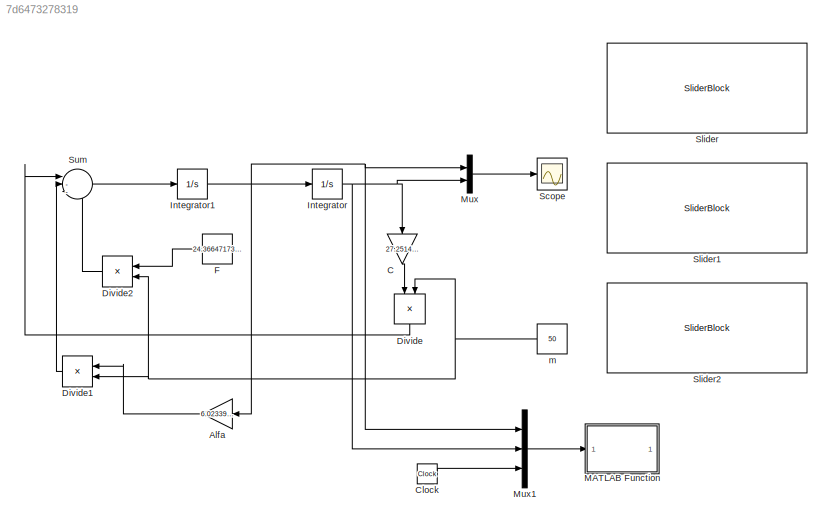
MODEL slx_7d6473278319
KIND model
CONFIG AbsTol = auto
CONFIG EnableMultiTasking = off
CONFIG FixedStep = auto
CONFIG MaxStep = auto
CONFIG MinStep = auto
CONFIG RelTol = 1e-3
CONFIG SampleTimeConstraint = Unconstrained
CONFIG SolverName = VariableStepAuto
CONFIG StartTime = 0.0
CONFIG StopTime = 80
BLOCK [Gain] Alfa
  Gain = 6.023391812865498
  NameLocation = top
BLOCK [Gain] C
  Gain = 27.25146198830409
  NameLocation = left
BLOCK [Clock] Clock
BLOCK [Product] Divide
  Inputs = */
  NameLocation = left
BLOCK [Product] Divide1
  Inputs = */
  NameLocation = top
BLOCK [Product] Divide2
  Inputs = */
  NameLocation = top
BLOCK [Constant] F
  NameLocation = top
  Value = 24.36647173489279
BLOCK [Integrator] Integrator
BLOCK [Integrator] Integrator1
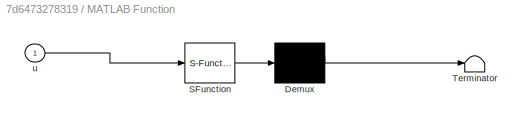
BLOCK [SubSystem] MATLAB Function
  ErrorFcn = Stateflow.Translate.translate
  PermitHierarchicalResolution = ExplicitOnly
  SFBlockType = MATLAB Function
  TreatAsAtomicUnit = on
BLOCK [Demux] MATLAB Function/ Demux 
  Outputs = 1
BLOCK [S-Function] MATLAB Function/ SFunction 
  EnableBusSupport = on
  FunctionName = sf_sfun
  PortCounts = [1 1]
  SFcnIsStateOwnerBlock = off
  SFunctionDeploymentMode = off
  Tag = Stateflow S-Function 2
BLOCK [Terminator] MATLAB Function/ Terminator 
BLOCK [Inport] MATLAB Function/u
BLOCK [Mux] Mux
  DisplayOption = bar
  Inputs = 2
BLOCK [Mux] Mux1
  DisplayOption = bar
  Inputs = 3
BLOCK [Scope] Scope
  Floating = off
  NumInputPorts = 1
  ScopeSpecificationString = Simulink.scopes.TimeScopeBlockCfg('CurrentConfiguration', extmgr.ConfigurationSet(extmgr.Configuration('Core','General UI',true),extmgr.Configuration('Core','Source UI',true),extmgr.Configuration('Sources','WiredSimulink',true),extmgr.Configuration('Visuals','Time Domain',true,'SerializedDisplays',{struct('MinYLimReal','-0.00003','MaxYLimReal','0.00023','YLabelReal','','MinYLimMag','0.00000','MaxY...<+1372ch>
BLOCK [SliderBlock] Slider
BLOCK [SliderBlock] Slider1
  ScaleMax = 60
BLOCK [SliderBlock] Slider2
  ScaleMax = 10
  TickInterval = 1
BLOCK [Sum] Sum
  Inputs = |--+
BLOCK [Constant] m
  NameLocation = top
  Value = 50
LINE Alfa:1 -> Divide1:1
LINE C:1 -> Divide:1
LINE Clock:1 -> Mux1:3
LINE Divide1:1 -> Sum:2
LINE Divide2:1 -> Sum:3
LINE Divide:1 -> Sum:1
LINE F:1 -> Divide2:1
NET Integrator1:1 -> Alfa:1, Integrator:1, Mux1:1, Mux:1
NET Integrator:1 -> C:1, Mux1:2, Mux:2
LINE Mux1:1 -> MATLAB Function:1
LINE Mux:1 -> Scope:1
LINE Sum:1 -> Integrator1:1
NET m:1 -> Divide1:2, Divide2:2, Divide:2
note: NET lines group one-source signal fan-out (src -> all destinations, sorted); 1:1 wires keep LINE
CHART MATLAB Function states=1 transitions=1
  STATE_LABEL 'eML_blk_kernel()'
  STATE_LABEL "SCRIPT:\nfunction narysuj(u)\n\nx = u(1);\ny = u(2);\nt = u(3);\n\n\ncla\nfigure\nplot(x,y,'b', 'LineWidth',1.5)\nhold on\nplot(x,t, '--r')\ngrid\ndrawnow"
CHART  states=0 transitions=0
